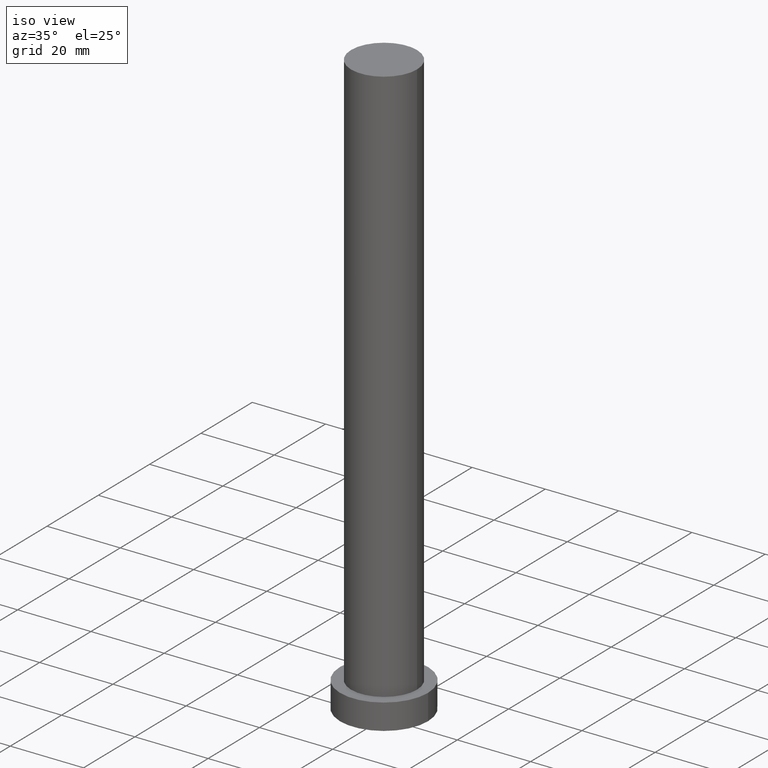
[diagram: clean part render]
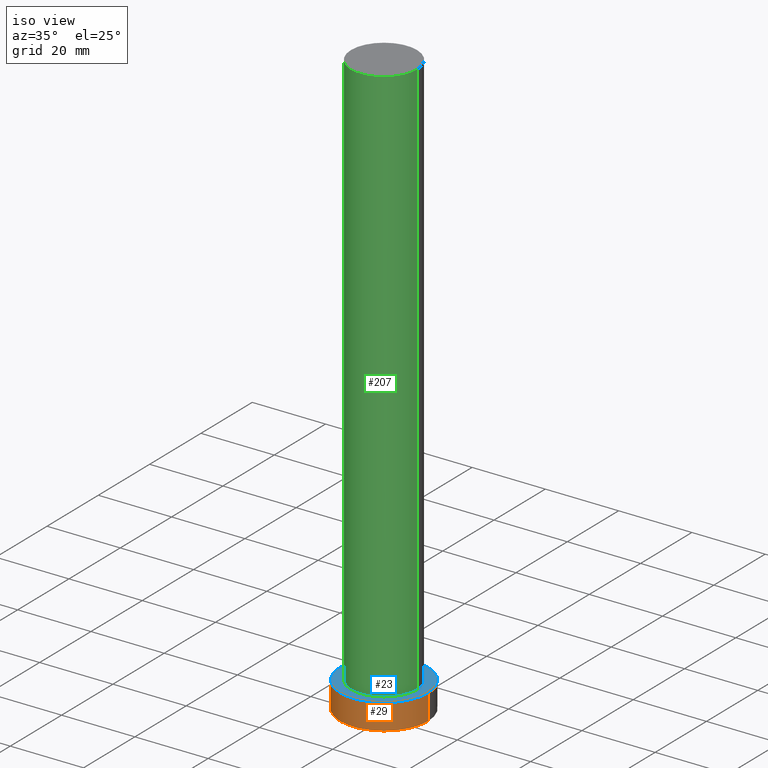
[diagram: same view with three faces highlighted in distinct colors, each labeled with its STEP entity id]
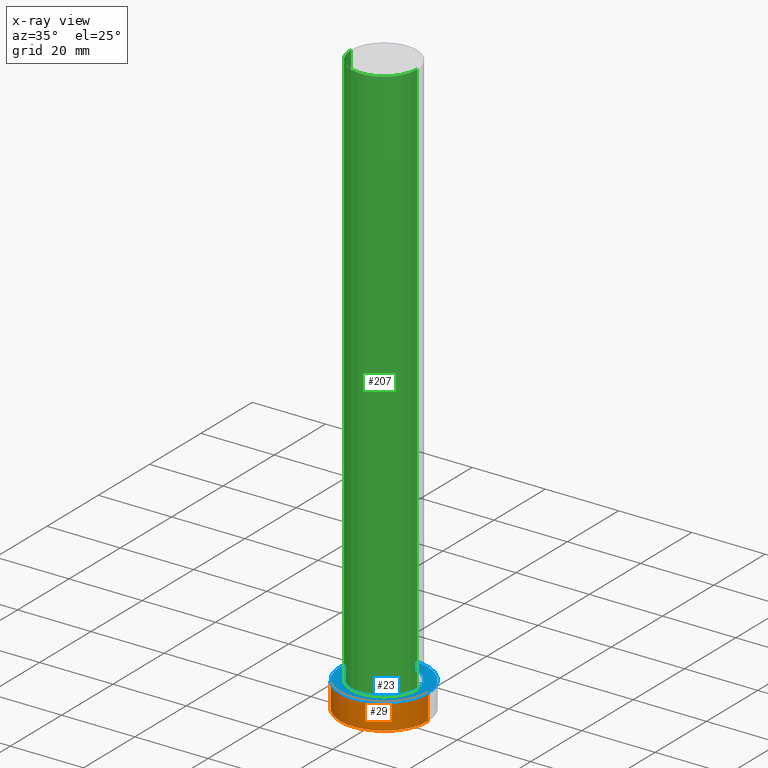
[diagram: x-ray of the same camera — body ghosted, the three highlighted faces saturated]
A machine part, iso view with three faces highlighted in distinct colors.
The next image is the same camera in x-ray (body ghosted, the three faces saturated) — at least one of them is partly hidden behind the body in this view.
Their STEP definitions:

[orange] entity #29 — the highlighted cylindrical surface (partial cylindrical patch) has radius 12 mm, axis along (-0, -0, -1).
#4 = ORIENTED_EDGE ( 'NONE', *, *, #158, .F. ) ;
#19 = EDGE_CURVE ( 'NONE', #80, #240, #50, .T. ) ;
#21 = VERTEX_POINT ( 'NONE', #236 ) ;
#28 = CARTESIAN_POINT ( 'NONE',  ( -12.00000000000000178, 0.000000000000000000, 7.000000000000000000 ) ) ;
#29 = ADVANCED_FACE ( 'NONE', ( #193 ), #198, .T. ) ;
#30 = CIRCLE ( 'NONE', #98, 12.00000000000000178 ) ;
#43 = DIRECTION ( 'NONE',  ( -1.000000000000000000, 0.000000000000000000, 0.000000000000000000 ) ) ;
#45 = LINE ( 'NONE', #69, #209 ) ;
#50 = CIRCLE ( 'NONE', #141, 12.00000000000000178 ) ;
#63 = DIRECTION ( 'NONE',  ( 1.000000000000000000, 0.000000000000000000, 0.000000000000000000 ) ) ;
#69 = CARTESIAN_POINT ( 'NONE',  ( 12.00000000000000178, 1.469576158976824144E-15, 7.000000000000000000 ) ) ;
#80 = VERTEX_POINT ( 'NONE', #94 ) ;
#83 = ORIENTED_EDGE ( 'NONE', *, *, #19, .T. ) ;
#87 = EDGE_CURVE ( 'NONE', #21, #240, #45, .T. ) ;
#94 = CARTESIAN_POINT ( 'NONE',  ( -12.00000000000000178, 0.000000000000000000, 0.000000000000000000 ) ) ;
#98 = AXIS2_PLACEMENT_3D ( 'NONE', #102, #202, #63 ) ;
#102 = CARTESIAN_POINT ( 'NONE',  ( 0.000000000000000000, 0.000000000000000000, 7.000000000000000000 ) ) ;
#113 = ORIENTED_EDGE ( 'NONE', *, *, #152, .T. ) ;
#120 = ORIENTED_EDGE ( 'NONE', *, *, #87, .F. ) ;
#122 = DIRECTION ( 'NONE',  ( 0.000000000000000000, 0.000000000000000000, 1.000000000000000000 ) ) ;
#132 = DIRECTION ( 'NONE',  ( 1.000000000000000000, 0.000000000000000000, 0.000000000000000000 ) ) ;
#140 = CARTESIAN_POINT ( 'NONE',  ( -12.00000000000000178, 0.000000000000000000, 7.000000000000000000 ) ) ;
#141 = AXIS2_PLACEMENT_3D ( 'NONE', #171, #122, #132 ) ;
#146 = DIRECTION ( 'NONE',  ( -0.000000000000000000, -0.000000000000000000, -1.000000000000000000 ) ) ;
#148 = LINE ( 'NONE', #140, #229 ) ;
#152 = EDGE_CURVE ( 'NONE', #194, #80, #148, .T. ) ;
#158 = EDGE_CURVE ( 'NONE', #194, #21, #30, .T. ) ;
#162 = AXIS2_PLACEMENT_3D ( 'NONE', #244, #146, #43 ) ;
#164 = CARTESIAN_POINT ( 'NONE',  ( 12.00000000000000178, 1.469576158976824144E-15, 0.000000000000000000 ) ) ;
#171 = CARTESIAN_POINT ( 'NONE',  ( 0.000000000000000000, 0.000000000000000000, 0.000000000000000000 ) ) ;
#193 = FACE_OUTER_BOUND ( 'NONE', #213, .T. ) ;
#194 = VERTEX_POINT ( 'NONE', #28 ) ;
#198 = CYLINDRICAL_SURFACE ( 'NONE', #162, 12.00000000000000178 ) ;
#202 = DIRECTION ( 'NONE',  ( 0.000000000000000000, 0.000000000000000000, 1.000000000000000000 ) ) ;
#209 = VECTOR ( 'NONE', #226, 1000.000000000000000 ) ;
#212 = DIRECTION ( 'NONE',  ( -0.000000000000000000, -0.000000000000000000, -1.000000000000000000 ) ) ;
#213 = EDGE_LOOP ( 'NONE', ( #120, #4, #113, #83 ) ) ;
#226 = DIRECTION ( 'NONE',  ( -0.000000000000000000, -0.000000000000000000, -1.000000000000000000 ) ) ;
#229 = VECTOR ( 'NONE', #212, 1000.000000000000000 ) ;
#236 = CARTESIAN_POINT ( 'NONE',  ( 12.00000000000000178, 1.469576158976824144E-15, 7.000000000000000000 ) ) ;
#240 = VERTEX_POINT ( 'NONE', #164 ) ;
#244 = CARTESIAN_POINT ( 'NONE',  ( 0.000000000000000000, 0.000000000000000000, 7.000000000000000000 ) ) ;

[blue] entity #23 — the highlighted planar face has unit normal (0, 0, 1).
#16 = EDGE_CURVE ( 'NONE', #21, #194, #243, .T. ) ;
#17 = AXIS2_PLACEMENT_3D ( 'NONE', #234, #254, #77 ) ;
#20 = FACE_BOUND ( 'NONE', #41, .T. ) ;
#21 = VERTEX_POINT ( 'NONE', #236 ) ;
#23 = ADVANCED_FACE ( 'NONE', ( #20, #230 ), #192, .T. ) ;
#26 = DIRECTION ( 'NONE',  ( 0.000000000000000000, 0.000000000000000000, 1.000000000000000000 ) ) ;
#28 = CARTESIAN_POINT ( 'NONE',  ( -12.00000000000000178, 0.000000000000000000, 7.000000000000000000 ) ) ;
#30 = CIRCLE ( 'NONE', #98, 12.00000000000000178 ) ;
#34 = VERTEX_POINT ( 'NONE', #88 ) ;
#39 = CARTESIAN_POINT ( 'NONE',  ( -9.000000000000000000, 0.000000000000000000, 7.000000000000000000 ) ) ;
#41 = EDGE_LOOP ( 'NONE', ( #138, #133 ) ) ;
#63 = DIRECTION ( 'NONE',  ( 1.000000000000000000, 0.000000000000000000, 0.000000000000000000 ) ) ;
#72 = CARTESIAN_POINT ( 'NONE',  ( 0.000000000000000000, 0.000000000000000000, 7.000000000000000000 ) ) ;
#73 = AXIS2_PLACEMENT_3D ( 'NONE', #253, #75, #208 ) ;
#75 = DIRECTION ( 'NONE',  ( 0.000000000000000000, 0.000000000000000000, 1.000000000000000000 ) ) ;
#77 = DIRECTION ( 'NONE',  ( 1.000000000000000000, 0.000000000000000000, 0.000000000000000000 ) ) ;
#79 = CIRCLE ( 'NONE', #135, 9.000000000000000000 ) ;
#88 = CARTESIAN_POINT ( 'NONE',  ( 9.000000000000000000, 1.102182119232617714E-15, 7.000000000000000000 ) ) ;
#98 = AXIS2_PLACEMENT_3D ( 'NONE', #102, #202, #63 ) ;
#99 = DIRECTION ( 'NONE',  ( 0.000000000000000000, 0.000000000000000000, 1.000000000000000000 ) ) ;
#100 = AXIS2_PLACEMENT_3D ( 'NONE', #72, #99, #231 ) ;
#102 = CARTESIAN_POINT ( 'NONE',  ( 0.000000000000000000, 0.000000000000000000, 7.000000000000000000 ) ) ;
#103 = CIRCLE ( 'NONE', #100, 9.000000000000000000 ) ;
#112 = EDGE_CURVE ( 'NONE', #34, #119, #103, .T. ) ;
#116 = CARTESIAN_POINT ( 'NONE',  ( 0.000000000000000000, 0.000000000000000000, 7.000000000000000000 ) ) ;
#119 = VERTEX_POINT ( 'NONE', #39 ) ;
#133 = ORIENTED_EDGE ( 'NONE', *, *, #112, .F. ) ;
#135 = AXIS2_PLACEMENT_3D ( 'NONE', #116, #26, #163 ) ;
#138 = ORIENTED_EDGE ( 'NONE', *, *, #233, .F. ) ;
#158 = EDGE_CURVE ( 'NONE', #194, #21, #30, .T. ) ;
#163 = DIRECTION ( 'NONE',  ( 1.000000000000000000, 0.000000000000000000, 0.000000000000000000 ) ) ;
#176 = EDGE_LOOP ( 'NONE', ( #246, #177 ) ) ;
#177 = ORIENTED_EDGE ( 'NONE', *, *, #16, .T. ) ;
#192 = PLANE ( 'NONE',  #73 ) ;
#194 = VERTEX_POINT ( 'NONE', #28 ) ;
#202 = DIRECTION ( 'NONE',  ( 0.000000000000000000, 0.000000000000000000, 1.000000000000000000 ) ) ;
#208 = DIRECTION ( 'NONE',  ( 1.000000000000000000, 0.000000000000000000, -0.000000000000000000 ) ) ;
#230 = FACE_OUTER_BOUND ( 'NONE', #176, .T. ) ;
#231 = DIRECTION ( 'NONE',  ( 1.000000000000000000, 0.000000000000000000, 0.000000000000000000 ) ) ;
#233 = EDGE_CURVE ( 'NONE', #119, #34, #79, .T. ) ;
#234 = CARTESIAN_POINT ( 'NONE',  ( 0.000000000000000000, 0.000000000000000000, 7.000000000000000000 ) ) ;
#236 = CARTESIAN_POINT ( 'NONE',  ( 12.00000000000000178, 1.469576158976824144E-15, 7.000000000000000000 ) ) ;
#243 = CIRCLE ( 'NONE', #17, 12.00000000000000178 ) ;
#246 = ORIENTED_EDGE ( 'NONE', *, *, #158, .T. ) ;
#253 = CARTESIAN_POINT ( 'NONE',  ( 0.000000000000000000, 0.000000000000000000, 7.000000000000000000 ) ) ;
#254 = DIRECTION ( 'NONE',  ( 0.000000000000000000, 0.000000000000000000, 1.000000000000000000 ) ) ;

[green] entity #207 — the highlighted cylindrical surface (partial cylindrical patch) has radius 9 mm, axis along (-0, -0, -1).
#1 = ORIENTED_EDGE ( 'NONE', *, *, #199, .F. ) ;
#2 = VERTEX_POINT ( 'NONE', #157 ) ;
#15 = DIRECTION ( 'NONE',  ( -0.000000000000000000, -0.000000000000000000, -1.000000000000000000 ) ) ;
#22 = DIRECTION ( 'NONE',  ( -1.000000000000000000, 0.000000000000000000, 0.000000000000000000 ) ) ;
#24 = ORIENTED_EDGE ( 'NONE', *, *, #251, .T. ) ;
#26 = DIRECTION ( 'NONE',  ( 0.000000000000000000, 0.000000000000000000, 1.000000000000000000 ) ) ;
#34 = VERTEX_POINT ( 'NONE', #88 ) ;
#39 = CARTESIAN_POINT ( 'NONE',  ( -9.000000000000000000, 0.000000000000000000, 7.000000000000000000 ) ) ;
#44 = DIRECTION ( 'NONE',  ( 0.000000000000000000, 0.000000000000000000, 1.000000000000000000 ) ) ;
#56 = EDGE_CURVE ( 'NONE', #241, #34, #78, .T. ) ;
#59 = VECTOR ( 'NONE', #188, 1000.000000000000000 ) ;
#61 = CARTESIAN_POINT ( 'NONE',  ( 0.000000000000000000, 0.000000000000000000, 160.0000000000000000 ) ) ;
#64 = LINE ( 'NONE', #218, #59 ) ;
#74 = AXIS2_PLACEMENT_3D ( 'NONE', #215, #44, #178 ) ;
#78 = LINE ( 'NONE', #143, #153 ) ;
#79 = CIRCLE ( 'NONE', #135, 9.000000000000000000 ) ;
#88 = CARTESIAN_POINT ( 'NONE',  ( 9.000000000000000000, 1.102182119232617714E-15, 7.000000000000000000 ) ) ;
#104 = ORIENTED_EDGE ( 'NONE', *, *, #233, .T. ) ;
#111 = CIRCLE ( 'NONE', #74, 9.000000000000000000 ) ;
#114 = EDGE_LOOP ( 'NONE', ( #242, #1, #24, #104 ) ) ;
#116 = CARTESIAN_POINT ( 'NONE',  ( 0.000000000000000000, 0.000000000000000000, 7.000000000000000000 ) ) ;
#118 = DIRECTION ( 'NONE',  ( -0.000000000000000000, -0.000000000000000000, -1.000000000000000000 ) ) ;
#119 = VERTEX_POINT ( 'NONE', #39 ) ;
#128 = FACE_OUTER_BOUND ( 'NONE', #114, .T. ) ;
#135 = AXIS2_PLACEMENT_3D ( 'NONE', #116, #26, #163 ) ;
#136 = CARTESIAN_POINT ( 'NONE',  ( 9.000000000000000000, 1.102182119232617714E-15, 160.0000000000000000 ) ) ;
#143 = CARTESIAN_POINT ( 'NONE',  ( 9.000000000000000000, 1.102182119232617714E-15, 160.0000000000000000 ) ) ;
#144 = CYLINDRICAL_SURFACE ( 'NONE', #191, 9.000000000000000000 ) ;
#153 = VECTOR ( 'NONE', #15, 1000.000000000000000 ) ;
#157 = CARTESIAN_POINT ( 'NONE',  ( -9.000000000000000000, 0.000000000000000000, 160.0000000000000000 ) ) ;
#163 = DIRECTION ( 'NONE',  ( 1.000000000000000000, 0.000000000000000000, 0.000000000000000000 ) ) ;
#178 = DIRECTION ( 'NONE',  ( 1.000000000000000000, 0.000000000000000000, 0.000000000000000000 ) ) ;
#188 = DIRECTION ( 'NONE',  ( -0.000000000000000000, -0.000000000000000000, -1.000000000000000000 ) ) ;
#191 = AXIS2_PLACEMENT_3D ( 'NONE', #61, #118, #22 ) ;
#199 = EDGE_CURVE ( 'NONE', #2, #241, #111, .T. ) ;
#207 = ADVANCED_FACE ( 'NONE', ( #128 ), #144, .T. ) ;
#215 = CARTESIAN_POINT ( 'NONE',  ( 0.000000000000000000, 0.000000000000000000, 160.0000000000000000 ) ) ;
#218 = CARTESIAN_POINT ( 'NONE',  ( -9.000000000000000000, 0.000000000000000000, 160.0000000000000000 ) ) ;
#233 = EDGE_CURVE ( 'NONE', #119, #34, #79, .T. ) ;
#241 = VERTEX_POINT ( 'NONE', #136 ) ;
#242 = ORIENTED_EDGE ( 'NONE', *, *, #56, .F. ) ;
#251 = EDGE_CURVE ( 'NONE', #2, #119, #64, .T. ) ;